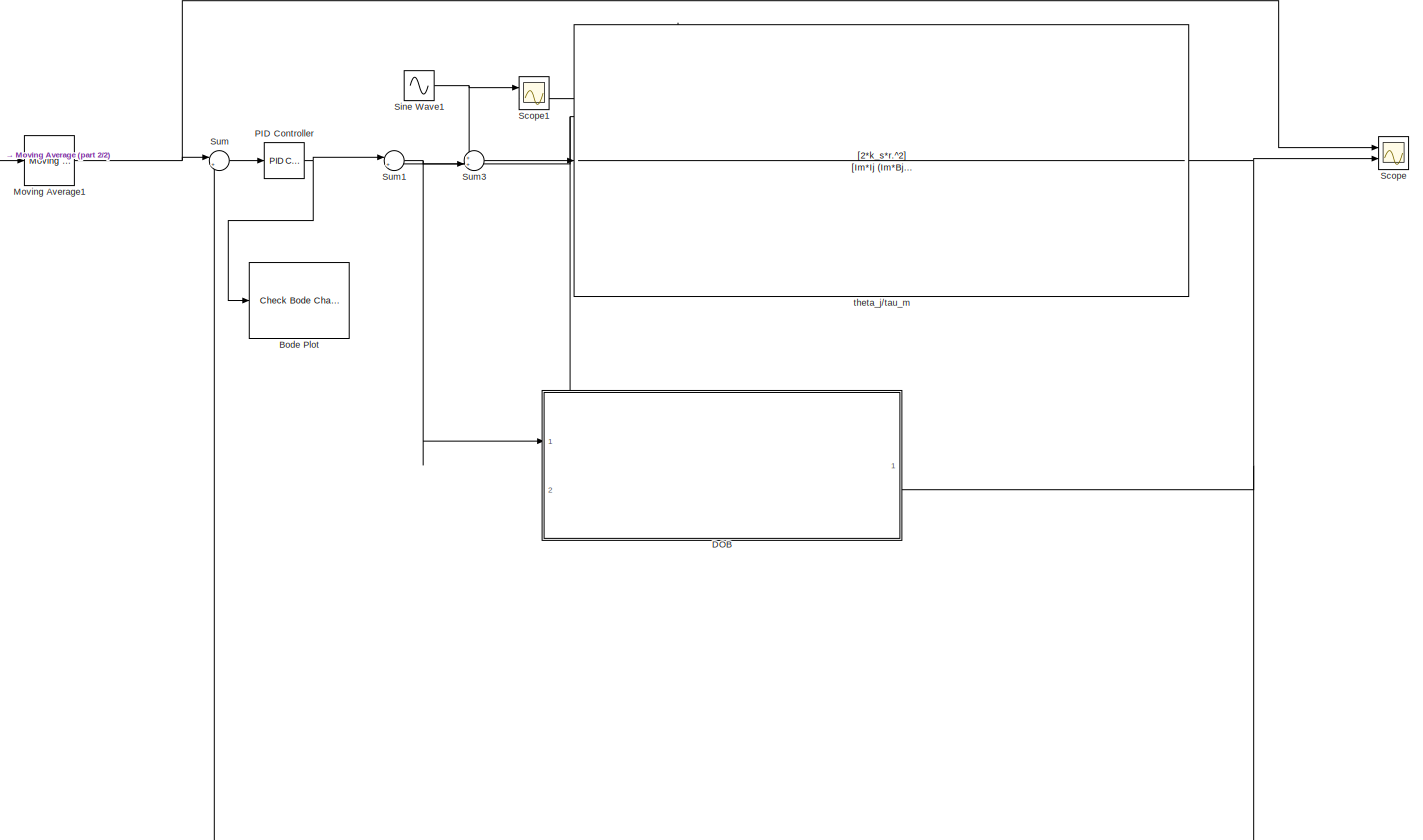
[diagram: root canvas - part 1/2, most of the canvas]
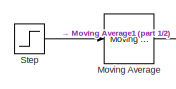
[diagram: root canvas - part 2/2, top left region]
MODEL slx_00631d965805
KIND model
CONFIG AbsTol = auto
CONFIG EnableMultiTasking = off
CONFIG FixedStep = 0.0001
CONFIG InitFcn = Im=1;\nIj=0.1;\nk_s=3000;\nr=0.015;\nBm = 0.3;\nBj = 0.1;\nwc = 100 ;
CONFIG MaxStep = auto
CONFIG MinStep = auto
CONFIG RelTol = 1e-3
CONFIG SampleTimeConstraint = Unconstrained
CONFIG SolverName = ode4
CONFIG StartTime = 0.0
CONFIG StopTime = 50
BLOCK [Reference] Bode Plot  REF=slctrlblks/Model Verification/Check Bode 
Characteristics
  InstantiateOnLoad = on
  Ports = [1]
  SourceBlock = slctrlblks/Model Verification/Check Bode \nCharacteristics
  SourceProductBaseCode = SD
  SourceType = Checks_Bode
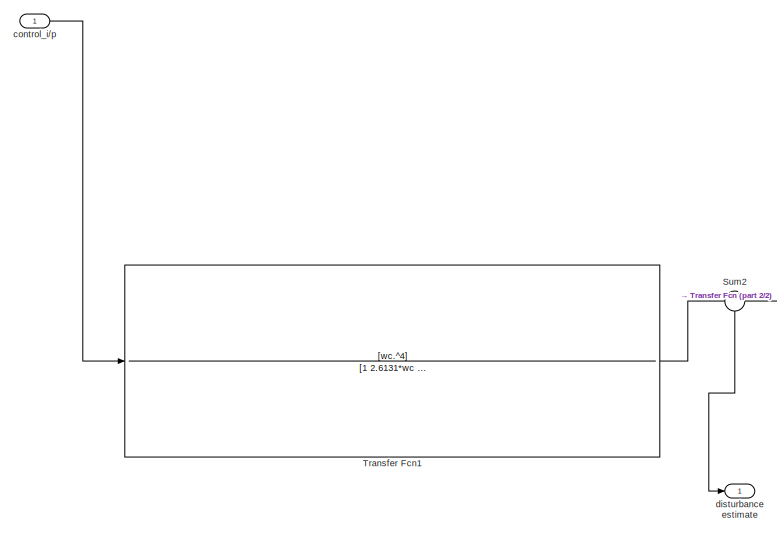
[diagram: DOB - part 1/2, left side, full height]
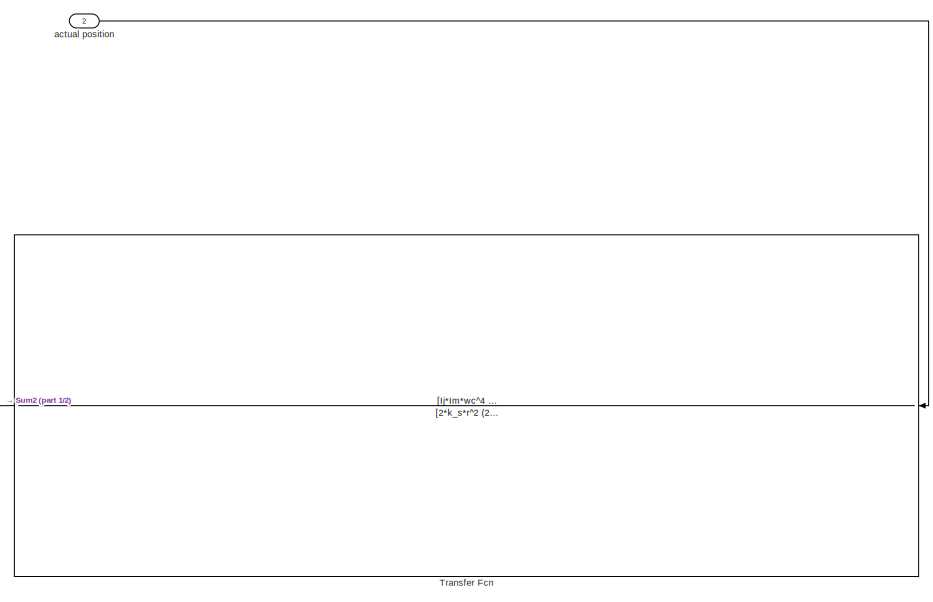
[diagram: DOB - part 2/2, right side, full height]
BLOCK [SubSystem] DOB
  PortSchema = {"entries":[{"content":{"sides":[{"content":{"connectorIds":["In1"]},"type":"ConnectorPlacement.EquallySpacedRectSide","uuid":"39ece9b6-474b-4a00-97b3-8efc39b44a1e"},{"content":{"connectorIds":["In2"],"side":"RIGHT"},"type":"ConnectorPlacement.EquallySpacedRectSide","uuid":"047ce420-0e52-454f-a43b-d37f0edecad8"},{"content":{"connectorIds":[],"side":"TOP"},"type":"ConnectorPlacement.EquallySpacedRe...<+389ch>
  Ports = [2, 1]
  RequestExecContextInheritance = off
BLOCK [Sum] DOB/Sum2
  Inputs = -|+
  NameLocation = right
  Ports = [2, 1]
BLOCK [TransferFcn] DOB/Transfer Fcn
  Denominator = [2*k_s*r^2 (26131*k_s*r^2*wc)/5000 (17071*k_s*r^2*wc^2)/2500 (26131*k_s*r^2*wc^3)/5000 2*k_s*r^2*wc^4]
  Numerator = [Ij*Im*wc^4  wc^4*(Bm*Ij+Bj*Im)  wc^4*(k_s*(2*Ij+2*Im)*r^2+Bj*Bm)  k_s*r^2*wc^4*(2*Bj+2*Bm) 0]
BLOCK [TransferFcn] DOB/Transfer Fcn1
  Denominator = [1 2.6131*wc 3.4142*wc.^2 2.6131*wc.^3 wc.^4]
  Numerator = [wc.^4]
BLOCK [Inport] DOB/actual position
  Port = 2
BLOCK [Inport] DOB/control_i//p
BLOCK [Outport] DOB/disturbance estimate
BLOCK [Reference] Moving Average  REF=dspstat3/Moving
Average
  Ports = [1, 1]
  SourceBlock = dspstat3/Moving\nAverage
  SourceProductBaseCode = DS
  SourceType = dsp.simulink.MovingAverage
BLOCK [Reference] Moving Average1  REF=dspstat3/Moving
Average
  Ports = [1, 1]
  SourceBlock = dspstat3/Moving\nAverage
  SourceProductBaseCode = DS
  SourceType = dsp.simulink.MovingAverage
BLOCK [Reference] PID Controller  REF=pid_lib/PID Controller
  Ports = [1, 1]
  SourceBlock = pid_lib/PID Controller
  SourceProductBaseCode = SL
  SourceType = PID 1dof
BLOCK [Scope] Scope
  Floating = off
  NumInputPorts = 2
  Ports = [2]
  ScopeSpecificationString = Simulink.scopes.TimeScopeBlockCfg('CurrentConfiguration', extmgr.ConfigurationSet(extmgr.Configuration('Core','General UI',true),extmgr.Configuration('Core','Source UI',true),extmgr.Configuration('Sources','WiredSimulink',true),extmgr.Configuration('Visuals','Time Domain',true,'SerializedDisplays',{struct('MinYLimReal','-0.18135','MaxYLimReal','1.62509','YLabelReal','','MinYLimMag','0.00000','MaxY...<+1711ch>
BLOCK [Scope] Scope1
  Floating = off
  NumInputPorts = 2
  Ports = [2]
  ScopeSpecificationString = Simulink.scopes.TimeScopeBlockCfg('CurrentConfiguration', extmgr.ConfigurationSet(extmgr.Configuration('Core','General UI',true),extmgr.Configuration('Core','Source UI',true),extmgr.Configuration('Sources','WiredSimulink',true,'DataLoggingVariableName','ScopeData1'),extmgr.Configuration('Visuals','Time Domain',true,'SerializedDisplays',{struct('MinYLimReal','0.835','MaxYLimReal','1.12943','YLabelR...<+1436ch>
BLOCK [Sin] Sine Wave1
  Frequency = 50
  Ports = [0, 1]
  SampleTime = 0
BLOCK [Step] Step
  SampleTime = 0
  Time = 5
BLOCK [Sum] Sum
  Inputs = |+-
  Ports = [2, 1]
BLOCK [Sum] Sum1
  Inputs = |+-
  Ports = [2, 1]
BLOCK [Sum] Sum3
  Inputs = ++|
  Ports = [2, 1]
BLOCK [TransferFcn] theta_j//tau_m
  Denominator = [Im*Ij (Im*Bj+Bm*Ij)  ((Im+Ij)*2*k_s*r.^2+Bm*Bj) (Bm+Bj)*2*k_s*r.^2 0]
  Numerator = [2*k_s*r.^2]
LINE DOB/Sum2:1 -> DOB/disturbance estimate:1
LINE DOB/Transfer Fcn1:1 -> DOB/Sum2:1
LINE DOB/Transfer Fcn:1 -> DOB/Sum2:2
LINE DOB/actual position:1 -> DOB/Transfer Fcn:1
LINE DOB/control_i//p:1 -> DOB/Transfer Fcn1:1
NET DOB:1 -> Scope1:2, Sum1:2
NET Moving Average1:1 -> Scope:1, Sum:1
LINE Moving Average:1 -> Moving Average1:1
NET PID Controller:1 -> Bode Plot:1, Sum1:1
NET Sine Wave1:1 -> Scope1:1, Sum3:1
LINE Step:1 -> Moving Average:1
NET Sum1:1 -> DOB:1, Sum3:2
LINE Sum3:1 -> theta_j//tau_m:1
LINE Sum:1 -> PID Controller:1
NET theta_j//tau_m:1 -> DOB:2, Scope:2, Sum:2
note: NET lines group one-source signal fan-out (src -> all destinations, sorted); 1:1 wires keep LINE
